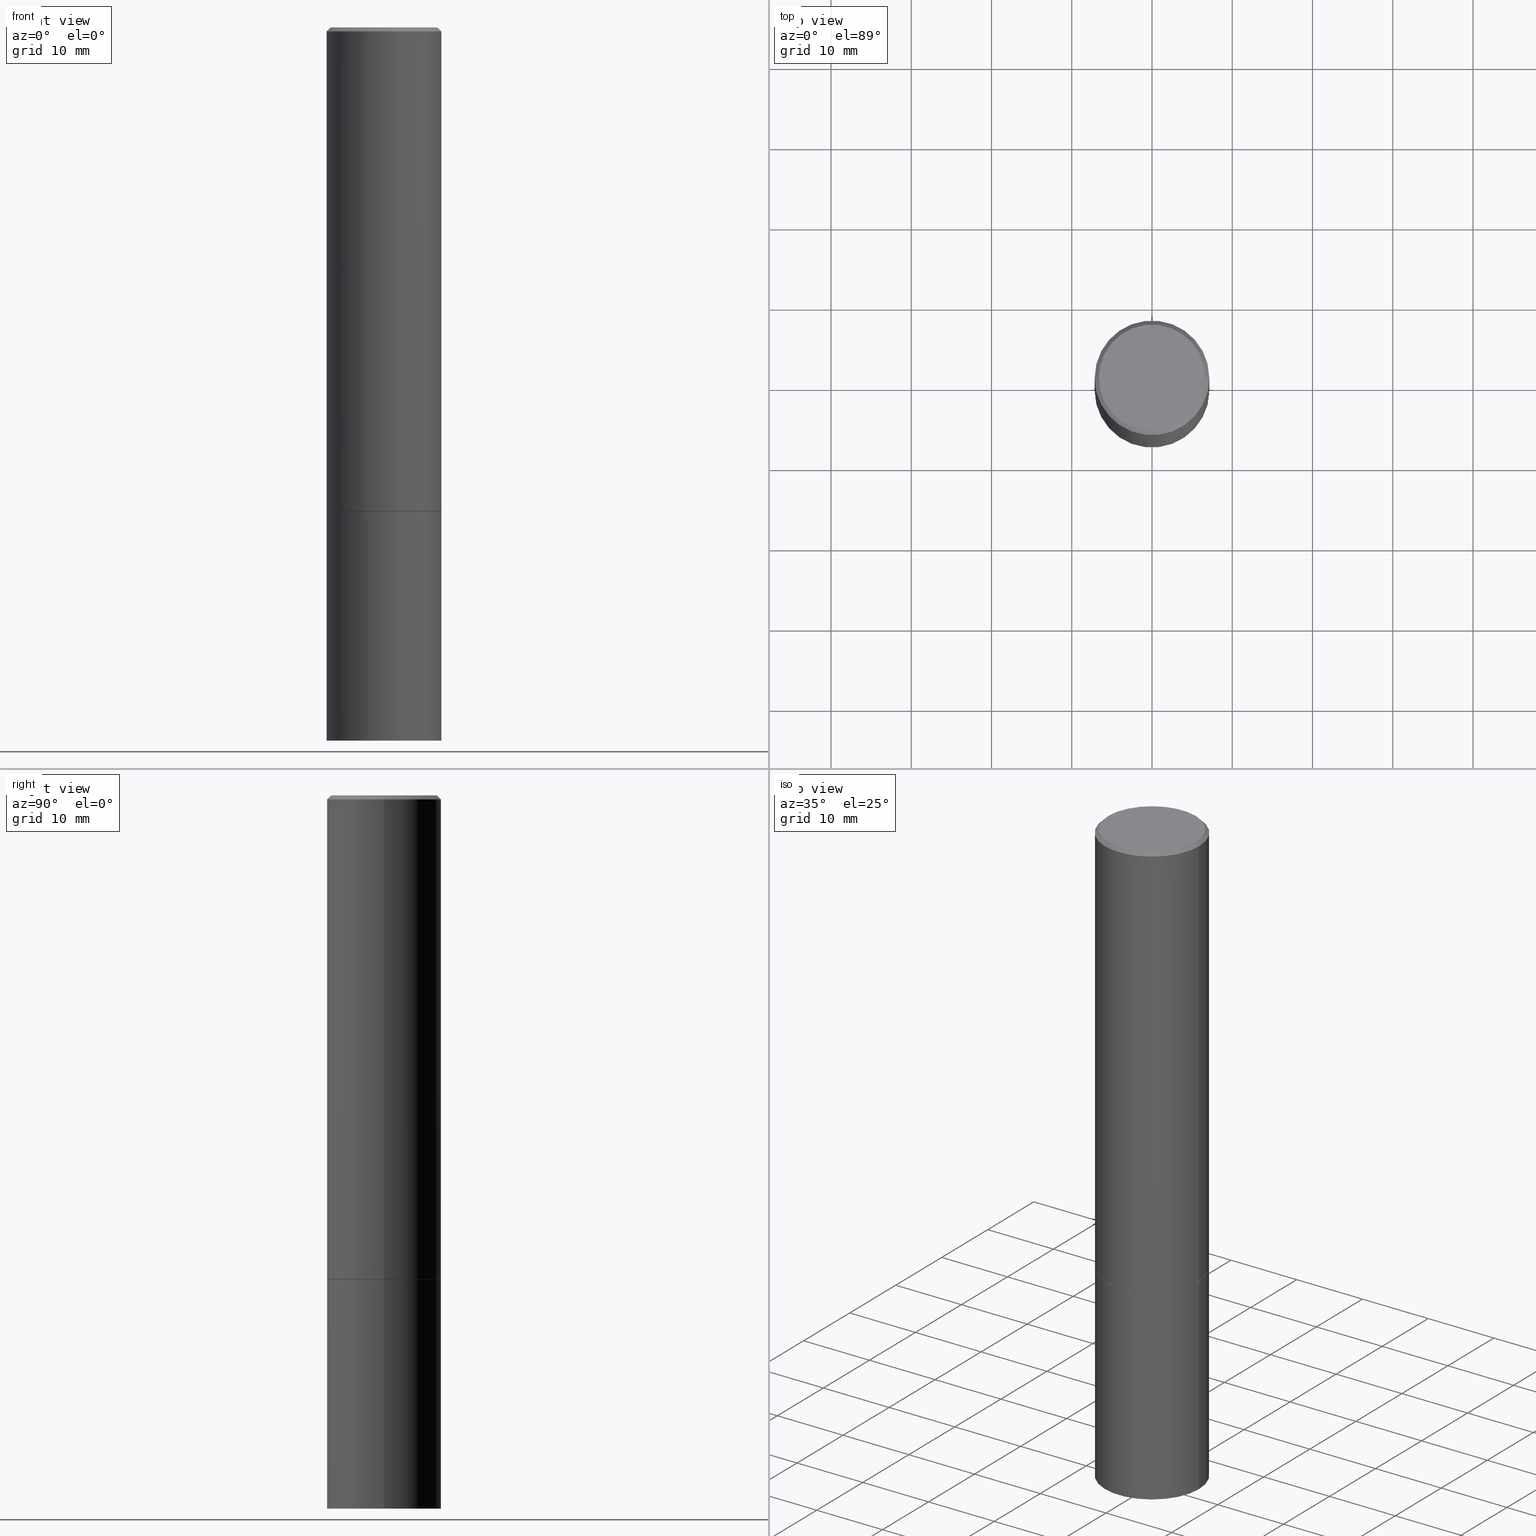
[diagram: canonical four-view strip — front | top / right | iso, engineering-drawing reading convention]
A machine part, canonical four-view strip (front | top / right | iso — engineering-drawing reading convention). The complete STEP part file that produces these views, byte-faithful:
ISO-10303-21;
HEADER;
FILE_DESCRIPTION (( 'STEP AP203' ),
    '1' );
FILE_NAME ('39365.STEP',
    '2024-02-28T00:31:30',
    ( '' ),
    ( '' ),
    'SwSTEP 2.0',
    'SolidWorks 2023',
    '' );
FILE_SCHEMA (( 'CONFIG_CONTROL_DESIGN' ));
ENDSEC;

DATA;
#1 = APPROVAL_STATUS ( 'not_yet_approved' ) ;
#2 = DIRECTION ( 'NONE',  ( 1.000000000000000000, -6.982962677686269866E-15, 0.000000000000000000 ) ) ;
#3 = CARTESIAN_POINT ( 'NONE',  ( 0.2812500000000000000, -1.963958253099262512E-15, 1.371424718192607012E-29 ) ) ;
#4 = ADVANCED_FACE ( 'NONE', ( #90 ), #143, .F. ) ;
#5 = PERSON ( 'UNSPECIFIED', 'UNSPECIFIED', 'UNSPECIFIED', ('UNSPECIFIED'), ('UNSPECIFIED'), ('UNSPECIFIED') ) ;
#6 = LINE ( 'NONE', #317, #257 ) ;
#7 = CARTESIAN_POINT ( 'NONE',  ( 0.000000000000000000, 0.000000000000000000, 0.000000000000000000 ) ) ;
#8 = LINE ( 'NONE', #120, #327 ) ;
#9 = EDGE_CURVE ( 'NONE', #361, #130, #61, .T. ) ;
#10 = CONICAL_SURFACE ( 'NONE', #131, 0.2812499999999996114, 0.7853981633974472798 ) ;
#11 =( GEOMETRIC_REPRESENTATION_CONTEXT ( 3 ) GLOBAL_UNCERTAINTY_ASSIGNED_CONTEXT ( ( #70 ) ) GLOBAL_UNIT_ASSIGNED_CONTEXT ( ( #107, #21, #242 ) ) REPRESENTATION_CONTEXT ( 'NONE', 'WORKASPACE' ) );
#12 = DIRECTION ( 'NONE',  ( -1.000000000000000000, 6.982962677686265922E-15, -4.876176775795935793E-29 ) ) ;
#13 = DIRECTION ( 'NONE',  ( -2.445468806185136597E-29, 3.491481338843145583E-15, 1.000000000000000000 ) ) ;
#14 = ADVANCED_FACE ( 'NONE', ( #168 ), #37, .T. ) ;
#15 = DIRECTION ( 'NONE',  ( -2.445468806185136877E-29, 3.491481338843145188E-15, 1.000000000000000000 ) ) ;
#16 = FACE_OUTER_BOUND ( 'NONE', #110, .T. ) ;
#17 = DIRECTION ( 'NONE',  ( -2.445468806185136597E-29, 3.491481338843145583E-15, 1.000000000000000000 ) ) ;
#18 = COORDINATED_UNIVERSAL_TIME_OFFSET ( 5, 0, .BEHIND. ) ;
#19 = ORIENTED_EDGE ( 'NONE', *, *, #141, .F. ) ;
#20 = PRODUCT_RELATED_PRODUCT_CATEGORY ( 'detail', '', ( #303 ) ) ;
#21 =( NAMED_UNIT ( * ) PLANE_ANGLE_UNIT ( ) SI_UNIT ( $, .RADIAN. ) );
#22 = CIRCLE ( 'NONE', #67, 0.2812500000000000000 ) ;
#23 = AXIS2_PLACEMENT_3D ( 'NONE', #68, #65, #96 ) ;
#24 = ORIENTED_EDGE ( 'NONE', *, *, #348, .T. ) ;
#25 = PERSON_AND_ORGANIZATION ( #5, #155 ) ;
#26 = ORIENTED_EDGE ( 'NONE', *, *, #293, .F. ) ;
#27 = DATE_AND_TIME ( #101, #339 ) ;
#28 = EDGE_LOOP ( 'NONE', ( #19, #217, #337, #358 ) ) ;
#29 = DIRECTION ( 'NONE',  ( 0.000000000000000000, 0.000000000000000000, 1.000000000000000000 ) ) ;
#30 = ORIENTED_EDGE ( 'NONE', *, *, #224, .F. ) ;
#31 = VECTOR ( 'NONE', #294, 39.37007874015748143 ) ;
#32 = AXIS2_PLACEMENT_3D ( 'NONE', #43, #129, #154 ) ;
#33 = CARTESIAN_POINT ( 'NONE',  ( 0.2812499999999996114, -1.999344688650103789E-15, -0.02000000000000006981 ) ) ;
#34 = DIRECTION ( 'NONE',  ( -2.445468806185136597E-29, 3.491481338843145583E-15, 1.000000000000000000 ) ) ;
#35 = ORIENTED_EDGE ( 'NONE', *, *, #46, .F. ) ;
#36 = AXIS2_PLACEMENT_3D ( 'NONE', #152, #13, #201 ) ;
#37 = CYLINDRICAL_SURFACE ( 'NONE', #345, 0.2812499999999998335 ) ;
#38 = CARTESIAN_POINT ( 'NONE',  ( 0.2812499999999996114, -1.999344688650103789E-15, -0.02000000000000006981 ) ) ;
#39 = DIRECTION ( 'NONE',  ( 2.438088387897960049E-29, -3.491481338843145188E-15, -1.000000000000000000 ) ) ;
#40 = SECURITY_CLASSIFICATION ( '', '', #186 ) ;
#41 = CYLINDRICAL_SURFACE ( 'NONE', #352, 0.2812500000000000000 ) ;
#42 = FACE_OUTER_BOUND ( 'NONE', #364, .T. ) ;
#43 = CARTESIAN_POINT ( 'NONE',  ( 5.807988414689698296E-29, -8.292268179752468540E-15, -2.374999999999999556 ) ) ;
#44 = CYLINDRICAL_SURFACE ( 'NONE', #286, 0.2812500000000000000 ) ;
#45 =( LENGTH_UNIT ( ) NAMED_UNIT ( * ) SI_UNIT ( $, .METRE. ) );
#46 = EDGE_CURVE ( 'NONE', #140, #130, #193, .T. ) ;
#47 = EDGE_LOOP ( 'NONE', ( #74, #82 ) ) ;
#48 = DATE_AND_TIME ( #301, #108 ) ;
#49 = ORIENTED_EDGE ( 'NONE', *, *, #204, .F. ) ;
#50 = APPLICATION_CONTEXT ( 'configuration controlled 3d designs of mechanical parts and assemblies' ) ;
#51 = CALENDAR_DATE ( 2024, 27, 2 ) ;
#52 = VECTOR ( 'NONE', #196, 39.37007874015748143 ) ;
#53 = ORIENTED_EDGE ( 'NONE', *, *, #234, .F. ) ;
#54 = EDGE_CURVE ( 'NONE', #192, #75, #6, .T. ) ;
#55 = ORIENTED_EDGE ( 'NONE', *, *, #9, .T. ) ;
#56 = CALENDAR_DATE ( 2024, 27, 2 ) ;
#57 = ORIENTED_EDGE ( 'NONE', *, *, #324, .T. ) ;
#58 = FACE_OUTER_BOUND ( 'NONE', #187, .T. ) ;
#59 = DIRECTION ( 'NONE',  ( -0.7071067811865467956, 2.468850131082249172E-15, -0.7071067811865482389 ) ) ;
#60 = EDGE_CURVE ( 'NONE', #75, #130, #85, .T. ) ;
#61 = LINE ( 'NONE', #33, #298 ) ;
#62 = SHAPE_DEFINITION_REPRESENTATION ( #127, #118 ) ;
#63 = CARTESIAN_POINT ( 'NONE',  ( 4.890937612370289799E-31, -6.982962677686315028E-17, -0.02000000000000006981 ) ) ;
#64 = CARTESIAN_POINT ( 'NONE',  ( 0.000000000000000000, 0.000000000000000000, 0.000000000000000000 ) ) ;
#65 = DIRECTION ( 'NONE',  ( -2.445468806185136597E-29, 3.491481338843145583E-15, 1.000000000000000000 ) ) ;
#66 = DIRECTION ( 'NONE',  ( 1.000000000000000000, -6.982962677686269077E-15, 0.000000000000000000 ) ) ;
#67 = AXIS2_PLACEMENT_3D ( 'NONE', #142, #247, #2 ) ;
#68 = CARTESIAN_POINT ( 'NONE',  ( 5.807988414689698296E-29, -8.292268179752468540E-15, -2.374999999999999556 ) ) ;
#69 = CARTESIAN_POINT ( 'NONE',  ( -0.2612499999999995937, 1.859213812933965593E-15, -1.288019758893701069E-29 ) ) ;
#70 = UNCERTAINTY_MEASURE_WITH_UNIT (LENGTH_MEASURE( 1.000000000000000082E-05 ), #107, 'distance_accuracy_value', 'NONE');
#71 = DIRECTION ( 'NONE',  ( 1.000000000000000000, -6.982962677686265922E-15, 4.876176775795935793E-29 ) ) ;
#72 = CC_DESIGN_PERSON_AND_ORGANIZATION_ASSIGNMENT ( #269, #304, ( #313 ) ) ;
#73 = APPLICATION_PROTOCOL_DEFINITION ( 'international standard', 'config_control_design', 1994, #50 ) ;
#74 = ORIENTED_EDGE ( 'NONE', *, *, #153, .T. ) ;
#75 = VERTEX_POINT ( 'NONE', #117 ) ;
#76 = EDGE_CURVE ( 'NONE', #109, #189, #139, .T. ) ;
#77 = PERSON_AND_ORGANIZATION_ROLE ( 'classification_officer' ) ;
#78 = ORIENTED_EDGE ( 'NONE', *, *, #267, .F. ) ;
#79 = PERSON_AND_ORGANIZATION ( #5, #155 ) ;
#80 = ORIENTED_EDGE ( 'NONE', *, *, #144, .F. ) ;
#81 = DATE_AND_TIME ( #56, #177 ) ;
#82 = ORIENTED_EDGE ( 'NONE', *, *, #272, .T. ) ;
#83 = CC_DESIGN_PERSON_AND_ORGANIZATION_ASSIGNMENT ( #25, #77, ( #40 ) ) ;
#84 = FACE_OUTER_BOUND ( 'NONE', #47, .T. ) ;
#85 = CIRCLE ( 'NONE', #176, 0.2812499999999996114 ) ;
#86 = CIRCLE ( 'NONE', #292, 0.2812500000000000555 ) ;
#87 = DIRECTION ( 'NONE',  ( -2.445468806185136877E-29, 3.491481338843145188E-15, 1.000000000000000000 ) ) ;
#88 = CALENDAR_DATE ( 2024, 27, 2 ) ;
#89 = CARTESIAN_POINT ( 'NONE',  ( -0.2812500000000000000, -8.257824988526456379E-15, -3.500000000000000000 ) ) ;
#90 = FACE_OUTER_BOUND ( 'NONE', #329, .T. ) ;
#91 = DIRECTION ( 'NONE',  ( -2.445468806185136597E-29, 3.491481338843145583E-15, 1.000000000000000000 ) ) ;
#92 = DIRECTION ( 'NONE',  ( -2.445468806185136597E-29, 3.491481338843145583E-15, 1.000000000000000000 ) ) ;
#93 = FACE_OUTER_BOUND ( 'NONE', #28, .T. ) ;
#94 = VECTOR ( 'NONE', #87, 39.37007874015748143 ) ;
#95 = CIRCLE ( 'NONE', #125, 0.2812500000000000555 ) ;
#96 = DIRECTION ( 'NONE',  ( 1.000000000000000000, -6.982962677686269077E-15, 0.000000000000000000 ) ) ;
#97 = CARTESIAN_POINT ( 'NONE',  ( 5.805542945883512693E-29, -8.288776698413625533E-15, -2.373999999999999222 ) ) ;
#98 = APPROVAL ( #135, 'UNSPECIFIED' ) ;
#99 = MECHANICAL_CONTEXT ( 'NONE', #326, 'mechanical' ) ;
#100 = APPROVAL_PERSON_ORGANIZATION ( #360, #163, #356 ) ;
#101 = CALENDAR_DATE ( 2024, 27, 2 ) ;
#102 = ORIENTED_EDGE ( 'NONE', *, *, #324, .F. ) ;
#103 = DATE_AND_TIME ( #51, #194 ) ;
#104 = ORIENTED_EDGE ( 'NONE', *, *, #54, .T. ) ;
#105 = DIRECTION ( 'NONE',  ( -2.445468806185136597E-29, 3.491481338843145583E-15, 1.000000000000000000 ) ) ;
#106 = EDGE_LOOP ( 'NONE', ( #282, #24, #241, #302 ) ) ;
#107 =( CONVERSION_BASED_UNIT ( 'INCH', #235 ) LENGTH_UNIT ( ) NAMED_UNIT ( #340 ) );
#108 = LOCAL_TIME ( 19, 31, 30.00000000000000000, #274 ) ;
#109 = VERTEX_POINT ( 'NONE', #89 ) ;
#110 = EDGE_LOOP ( 'NONE', ( #78, #30 ) ) ;
#111 = ADVANCED_FACE ( 'NONE', ( #199 ), #166, .T. ) ;
#112 = CARTESIAN_POINT ( 'NONE',  ( 0.000000000000000000, 0.000000000000000000, 0.000000000000000000 ) ) ;
#113 = DIRECTION ( 'NONE',  ( 2.438088387897960049E-29, -3.491481338843145188E-15, -1.000000000000000000 ) ) ;
#114 = CIRCLE ( 'NONE', #205, 0.2612499999999995937 ) ;
#115 = CC_DESIGN_SECURITY_CLASSIFICATION ( #40, ( #313 ) ) ;
#116 = ADVANCED_FACE ( 'NONE', ( #347 ), #147, .T. ) ;
#117 = CARTESIAN_POINT ( 'NONE',  ( -0.2812499999999996114, 1.894128626322396848E-15, -0.02000000000000006981 ) ) ;
#118 = ADVANCED_BREP_SHAPE_REPRESENTATION ( '39365', ( #138, #253, #210 ), #11 ) ;
#119 = DIRECTION ( 'NONE',  ( -1.000000000000000000, 6.982962677686265922E-15, -4.876176775795935793E-29 ) ) ;
#120 = CARTESIAN_POINT ( 'NONE',  ( -0.2802499999999999991, -6.300972162784788564E-15, -2.374999999999999556 ) ) ;
#121 = LINE ( 'NONE', #208, #328 ) ;
#122 = ADVANCED_FACE ( 'NONE', ( #58 ), #10, .T. ) ;
#123 = CARTESIAN_POINT ( 'NONE',  ( 4.890937612370289799E-31, -6.982962677686315028E-17, -0.02000000000000006981 ) ) ;
#124 = CARTESIAN_POINT ( 'NONE',  ( 5.807988414689698296E-29, -8.292268179752468540E-15, -2.374999999999999556 ) ) ;
#125 = AXIS2_PLACEMENT_3D ( 'NONE', #97, #207, #202 ) ;
#126 = CARTESIAN_POINT ( 'NONE',  ( 5.807988414689698296E-29, -8.292268179752468540E-15, -2.374999999999999556 ) ) ;
#127 = PRODUCT_DEFINITION_SHAPE ( 'NONE', 'NONE',  #316 ) ;
#128 = CC_DESIGN_PERSON_AND_ORGANIZATION_ASSIGNMENT ( #216, #212, ( #316 ) ) ;
#129 = DIRECTION ( 'NONE',  ( -2.445468806185136597E-29, 3.491481338843145583E-15, 1.000000000000000000 ) ) ;
#130 = VERTEX_POINT ( 'NONE', #38 ) ;
#131 = AXIS2_PLACEMENT_3D ( 'NONE', #288, #169, #256 ) ;
#132 = CIRCLE ( 'NONE', #357, 0.2812500000000000000 ) ;
#133 = PERSON_AND_ORGANIZATION_ROLE ( 'design_owner' ) ;
#134 = EDGE_LOOP ( 'NONE', ( #333, #55, #268, #275 ) ) ;
#135 = APPROVAL_STATUS ( 'not_yet_approved' ) ;
#136 = ORIENTED_EDGE ( 'NONE', *, *, #76, .F. ) ;
#137 = ORIENTED_EDGE ( 'NONE', *, *, #141, .T. ) ;
#138 = MANIFOLD_SOLID_BREP ( 'Body-Move/Copy2[1]', #264 ) ;
#139 = CIRCLE ( 'NONE', #181, 0.2812500000000000000 ) ;
#140 = VERTEX_POINT ( 'NONE', #148 ) ;
#141 = EDGE_CURVE ( 'NONE', #236, #226, #8, .T. ) ;
#142 = CARTESIAN_POINT ( 'NONE',  ( 8.559140821647976968E-29, -1.222018468595100934E-14, -3.500000000000000000 ) ) ;
#143 = PLANE ( 'NONE',  #244 ) ;
#144 = EDGE_CURVE ( 'NONE', #189, #109, #22, .T. ) ;
#145 = PERSON_AND_ORGANIZATION ( #5, #155 ) ;
#146 = DIRECTION ( 'NONE',  ( -2.445468806185136597E-29, 3.491481338843145583E-15, 1.000000000000000000 ) ) ;
#147 = CYLINDRICAL_SURFACE ( 'NONE', #225, 0.2812499999999998335 ) ;
#148 = CARTESIAN_POINT ( 'NONE',  ( 0.2812500000000000555, -1.025273495151288883E-14, -2.373999999999999222 ) ) ;
#149 = CARTESIAN_POINT ( 'NONE',  ( 5.807988414689698296E-29, -8.292268179752468540E-15, -2.374999999999999556 ) ) ;
#150 = CONICAL_SURFACE ( 'NONE', #227, 0.2802499999999999991, 0.7853981633972946241 ) ;
#151 = CARTESIAN_POINT ( 'NONE',  ( 0.000000000000000000, 0.000000000000000000, 0.000000000000000000 ) ) ;
#152 = CARTESIAN_POINT ( 'NONE',  ( 0.000000000000000000, 0.000000000000000000, 0.000000000000000000 ) ) ;
#153 = EDGE_CURVE ( 'NONE', #192, #361, #114, .T. ) ;
#154 = DIRECTION ( 'NONE',  ( 1.000000000000000000, -6.982962677686269077E-15, 0.000000000000000000 ) ) ;
#155 = ORGANIZATION ( 'UNSPECIFIED', 'UNSPECIFIED', '' ) ;
#156 = DIRECTION ( 'NONE',  ( 1.000000000000000000, -6.982962677686269866E-15, 0.000000000000000000 ) ) ;
#157 = ORIENTED_EDGE ( 'NONE', *, *, #296, .T. ) ;
#158 = DATE_TIME_ROLE ( 'creation_date' ) ;
#159 = ORIENTED_EDGE ( 'NONE', *, *, #310, .T. ) ;
#160 = EDGE_CURVE ( 'NONE', #189, #246, #342, .T. ) ;
#161 = DIRECTION ( 'NONE',  ( 1.000000000000000000, -6.982962677686266711E-15, 4.876176775795935793E-29 ) ) ;
#162 = EDGE_LOOP ( 'NONE', ( #26, #300, #243, #223 ) ) ;
#163 = APPROVAL ( #183, 'UNSPECIFIED' ) ;
#164 = CARTESIAN_POINT ( 'NONE',  ( -0.2812500000000000000, -8.257824988526456379E-15, -2.374999999999999556 ) ) ;
#165 = EDGE_LOOP ( 'NONE', ( #80, #136 ) ) ;
#166 = CONICAL_SURFACE ( 'NONE', #290, 0.2812499999999996114, 0.7853981633974472798 ) ;
#167 = AXIS2_PLACEMENT_3D ( 'NONE', #126, #325, #71 ) ;
#168 = FACE_OUTER_BOUND ( 'NONE', #185, .T. ) ;
#169 = DIRECTION ( 'NONE',  ( 2.445468806185136597E-29, -3.491481338843145583E-15, -1.000000000000000000 ) ) ;
#170 = EDGE_LOOP ( 'NONE', ( #366, #309, #102, #277 ) ) ;
#171 = DIRECTION ( 'NONE',  ( -1.000000000000000000, 6.982962677686268288E-15, 0.000000000000000000 ) ) ;
#172 = DIRECTION ( 'NONE',  ( 1.000000000000000000, -6.982962677686266711E-15, 4.876176775795935793E-29 ) ) ;
#173 = ADVANCED_FACE ( 'NONE', ( #84 ), #195, .F. ) ;
#174 = FACE_OUTER_BOUND ( 'NONE', #165, .T. ) ;
#175 = CARTESIAN_POINT ( 'NONE',  ( -0.2812500000000000000, -2.180901718269959487E-15, -2.373999999999999222 ) ) ;
#176 = AXIS2_PLACEMENT_3D ( 'NONE', #198, #146, #218 ) ;
#177 = LOCAL_TIME ( 19, 31, 30.00000000000000000, #188 ) ;
#178 = DIRECTION ( 'NONE',  ( -2.445468806185136877E-29, 3.491481338843145188E-15, 1.000000000000000000 ) ) ;
#179 = DIRECTION ( 'NONE',  ( 1.000000000000000000, -6.982962677686268288E-15, 0.000000000000000000 ) ) ;
#180 = FACE_OUTER_BOUND ( 'NONE', #170, .T. ) ;
#181 = AXIS2_PLACEMENT_3D ( 'NONE', #252, #343, #311 ) ;
#182 = CIRCLE ( 'NONE', #32, 0.2802499999999999991 ) ;
#183 = APPROVAL_STATUS ( 'not_yet_approved' ) ;
#184 = APPROVAL_DATE_TIME ( #27, #163 ) ;
#185 = EDGE_LOOP ( 'NONE', ( #215, #159, #49, #35 ) ) ;
#186 = SECURITY_CLASSIFICATION_LEVEL ( 'unclassified' ) ;
#187 = EDGE_LOOP ( 'NONE', ( #305, #331, #104, #335 ) ) ;
#188 = COORDINATED_UNIVERSAL_TIME_OFFSET ( 5, 0, .BEHIND. ) ;
#189 = VERTEX_POINT ( 'NONE', #351 ) ;
#190 = ADVANCED_FACE ( 'NONE', ( #350 ), #41, .T. ) ;
#191 = COORDINATED_UNIVERSAL_TIME_OFFSET ( 5, 0, .BEHIND. ) ;
#192 = VERTEX_POINT ( 'NONE', #69 ) ;
#193 = LINE ( 'NONE', #284, #94 ) ;
#194 = LOCAL_TIME ( 19, 31, 30.00000000000000000, #191 ) ;
#195 = PLANE ( 'NONE',  #249 ) ;
#196 = DIRECTION ( 'NONE',  ( -2.445468806185136877E-29, 3.491481338843145188E-15, 1.000000000000000000 ) ) ;
#197 = APPROVAL_DATE_TIME ( #250, #211 ) ;
#198 = CARTESIAN_POINT ( 'NONE',  ( 4.890937612370289799E-31, -6.982962677686315028E-17, -0.02000000000000006981 ) ) ;
#199 = FACE_OUTER_BOUND ( 'NONE', #134, .T. ) ;
#200 = CC_DESIGN_APPROVAL ( #211, ( #40 ) ) ;
#201 = DIRECTION ( 'NONE',  ( 1.000000000000000000, -6.982962677686266711E-15, 4.876176775795935793E-29 ) ) ;
#202 = DIRECTION ( 'NONE',  ( 1.000000000000000000, -6.982962677686268288E-15, 0.000000000000000000 ) ) ;
#203 = CARTESIAN_POINT ( 'NONE',  ( 0.2802499999999999991, -1.024924347017404583E-14, -2.374999999999999556 ) ) ;
#204 = EDGE_CURVE ( 'NONE', #130, #75, #271, .T. ) ;
#205 = AXIS2_PLACEMENT_3D ( 'NONE', #112, #34, #338 ) ;
#206 = CONICAL_SURFACE ( 'NONE', #23, 0.2802499999999999991, 0.7853981633972946241 ) ;
#207 = DIRECTION ( 'NONE',  ( -2.445468806185136597E-29, 3.491481338843145583E-15, 1.000000000000000000 ) ) ;
#208 = CARTESIAN_POINT ( 'NONE',  ( -0.2812500000000000000, 1.998401444325281773E-15, -1.383450494134192269E-29 ) ) ;
#209 = PERSON_AND_ORGANIZATION ( #5, #155 ) ;
#210 = AXIS2_PLACEMENT_3D ( 'NONE', #238, #29, #355 ) ;
#211 = APPROVAL ( #1, 'UNSPECIFIED' ) ;
#212 = PERSON_AND_ORGANIZATION_ROLE ( 'creator' ) ;
#213 = PERSON_AND_ORGANIZATION ( #5, #155 ) ;
#214 = ORIENTED_EDGE ( 'NONE', *, *, #267, .T. ) ;
#215 = ORIENTED_EDGE ( 'NONE', *, *, #336, .T. ) ;
#216 = PERSON_AND_ORGANIZATION ( #5, #155 ) ;
#217 = ORIENTED_EDGE ( 'NONE', *, *, #224, .T. ) ;
#218 = DIRECTION ( 'NONE',  ( 1.000000000000000000, -6.982962677686268288E-15, 0.000000000000000000 ) ) ;
#219 = ADVANCED_FACE ( 'NONE', ( #42 ), #206, .T. ) ;
#220 = LOCAL_TIME ( 19, 31, 30.00000000000000000, #279 ) ;
#221 = DIRECTION ( 'NONE',  ( 0.7071067811865467956, -7.319954787623254468E-15, -0.7071067811865482389 ) ) ;
#222 = DIRECTION ( 'NONE',  ( 2.438088387897960049E-29, -3.491481338843145188E-15, -1.000000000000000000 ) ) ;
#223 = ORIENTED_EDGE ( 'NONE', *, *, #296, .F. ) ;
#224 = EDGE_CURVE ( 'NONE', #236, #273, #182, .T. ) ;
#225 = AXIS2_PLACEMENT_3D ( 'NONE', #7, #319, #344 ) ;
#226 = VERTEX_POINT ( 'NONE', #175 ) ;
#227 = AXIS2_PLACEMENT_3D ( 'NONE', #320, #91, #66 ) ;
#228 = PLANE ( 'NONE',  #299 ) ;
#229 = LINE ( 'NONE', #322, #245 ) ;
#230 = CC_DESIGN_PERSON_AND_ORGANIZATION_ASSIGNMENT ( #213, #332, ( #313 ) ) ;
#231 = CARTESIAN_POINT ( 'NONE',  ( 5.807988414689698296E-29, -8.292268179752468540E-15, -2.374999999999999556 ) ) ;
#232 = CARTESIAN_POINT ( 'NONE',  ( 0.2812500000000000000, -1.025622643285173184E-14, -2.374999999999999556 ) ) ;
#233 = CARTESIAN_POINT ( 'NONE',  ( -0.2802499999999999991, -6.295673708436565373E-15, -2.374999999999999556 ) ) ;
#234 = EDGE_CURVE ( 'NONE', #273, #140, #261, .T. ) ;
#235 = LENGTH_MEASURE_WITH_UNIT ( LENGTH_MEASURE( 0.02539999999999999897 ), #45 );
#236 = VERTEX_POINT ( 'NONE', #233 ) ;
#237 = AXIS2_PLACEMENT_3D ( 'NONE', #149, #258, #156 ) ;
#238 = CARTESIAN_POINT ( 'NONE',  ( 0.000000000000000000, 0.000000000000000000, 0.000000000000000000 ) ) ;
#239 = ADVANCED_FACE ( 'NONE', ( #93 ), #150, .T. ) ;
#240 = APPROVAL_ROLE ( '' ) ;
#241 = ORIENTED_EDGE ( 'NONE', *, *, #46, .T. ) ;
#242 =( NAMED_UNIT ( * ) SI_UNIT ( $, .STERADIAN. ) SOLID_ANGLE_UNIT ( ) );
#243 = ORIENTED_EDGE ( 'NONE', *, *, #160, .T. ) ;
#244 = AXIS2_PLACEMENT_3D ( 'NONE', #287, #222, #119 ) ;
#245 = VECTOR ( 'NONE', #178, 39.37007874015748143 ) ;
#246 = VERTEX_POINT ( 'NONE', #232 ) ;
#247 = DIRECTION ( 'NONE',  ( -2.445468806185136597E-29, 3.491481338843145583E-15, 1.000000000000000000 ) ) ;
#248 = DIRECTION ( 'NONE',  ( -2.445468806185136597E-29, 3.491481338843145583E-15, 1.000000000000000000 ) ) ;
#249 = AXIS2_PLACEMENT_3D ( 'NONE', #314, #113, #315 ) ;
#250 = DATE_AND_TIME ( #88, #220 ) ;
#251 = CIRCLE ( 'NONE', #278, 0.2802499999999999991 ) ;
#252 = CARTESIAN_POINT ( 'NONE',  ( 8.559140821647976968E-29, -1.222018468595100934E-14, -3.500000000000000000 ) ) ;
#253 = MANIFOLD_SOLID_BREP ( 'Body-Move/Copy2[2]', #312 ) ;
#254 = ADVANCED_FACE ( 'NONE', ( #174 ), #228, .T. ) ;
#255 = DIRECTION ( 'NONE',  ( 2.445468806185136597E-29, -3.491481338843145583E-15, -1.000000000000000000 ) ) ;
#256 = DIRECTION ( 'NONE',  ( -1.000000000000000000, 6.982962677686268288E-15, 0.000000000000000000 ) ) ;
#257 = VECTOR ( 'NONE', #59, 39.37007874015748143 ) ;
#258 = DIRECTION ( 'NONE',  ( -2.445468806185136597E-29, 3.491481338843145583E-15, 1.000000000000000000 ) ) ;
#259 = CIRCLE ( 'NONE', #237, 0.2812500000000000000 ) ;
#260 = DIRECTION ( 'NONE',  ( 1.000000000000000000, -6.982962677686268288E-15, 0.000000000000000000 ) ) ;
#261 = LINE ( 'NONE', #297, #31 ) ;
#262 = DESIGN_CONTEXT ( 'detailed design', #50, 'design' ) ;
#263 = CARTESIAN_POINT ( 'NONE',  ( 1.963958253099348104E-15, 0.2812499999999877875, -3.500000000000000888 ) ) ;
#264 = CLOSED_SHELL ( 'NONE', ( #359, #254, #4, #190 ) ) ;
#265 = CIRCLE ( 'NONE', #36, 0.2612499999999995937 ) ;
#266 = PLANE ( 'NONE',  #167 ) ;
#267 = EDGE_CURVE ( 'NONE', #273, #236, #251, .T. ) ;
#268 = ORIENTED_EDGE ( 'NONE', *, *, #204, .T. ) ;
#269 = PERSON_AND_ORGANIZATION ( #5, #155 ) ;
#270 = ORIENTED_EDGE ( 'NONE', *, *, #336, .F. ) ;
#271 = CIRCLE ( 'NONE', #346, 0.2812499999999996114 ) ;
#272 = EDGE_CURVE ( 'NONE', #361, #192, #265, .T. ) ;
#273 = VERTEX_POINT ( 'NONE', #203 ) ;
#274 = COORDINATED_UNIVERSAL_TIME_OFFSET ( 5, 0, .BEHIND. ) ;
#275 = ORIENTED_EDGE ( 'NONE', *, *, #54, .F. ) ;
#276 = APPLICATION_PROTOCOL_DEFINITION ( 'international standard', 'config_control_design', 1994, #326 ) ;
#277 = ORIENTED_EDGE ( 'NONE', *, *, #160, .F. ) ;
#278 = AXIS2_PLACEMENT_3D ( 'NONE', #124, #291, #289 ) ;
#279 = COORDINATED_UNIVERSAL_TIME_OFFSET ( 5, 0, .BEHIND. ) ;
#280 = DIRECTION ( 'NONE',  ( -0.7071067811864388819, 7.493145998869961307E-15, 0.7071067811866561525 ) ) ;
#281 = CC_DESIGN_DATE_AND_TIME_ASSIGNMENT ( #48, #158, ( #316 ) ) ;
#282 = ORIENTED_EDGE ( 'NONE', *, *, #310, .F. ) ;
#283 = DATE_TIME_ROLE ( 'classification_date' ) ;
#284 = CARTESIAN_POINT ( 'NONE',  ( 0.2812499999999998335, -1.963958253099261329E-15, 1.371424718192606171E-29 ) ) ;
#285 = CC_DESIGN_PERSON_AND_ORGANIZATION_ASSIGNMENT ( #209, #133, ( #303 ) ) ;
#286 = AXIS2_PLACEMENT_3D ( 'NONE', #330, #105, #161 ) ;
#287 = CARTESIAN_POINT ( 'NONE',  ( 1.963958253099320494E-15, 0.2812499999999917288, -2.375000000000000444 ) ) ;
#288 = CARTESIAN_POINT ( 'NONE',  ( 4.890937612370289799E-31, -6.982962677686315028E-17, -0.02000000000000006981 ) ) ;
#289 = DIRECTION ( 'NONE',  ( 1.000000000000000000, -6.982962677686269077E-15, 0.000000000000000000 ) ) ;
#290 = AXIS2_PLACEMENT_3D ( 'NONE', #63, #255, #171 ) ;
#291 = DIRECTION ( 'NONE',  ( -2.445468806185136597E-29, 3.491481338843145583E-15, 1.000000000000000000 ) ) ;
#292 = AXIS2_PLACEMENT_3D ( 'NONE', #321, #323, #179 ) ;
#293 = EDGE_CURVE ( 'NONE', #109, #363, #121, .T. ) ;
#294 = DIRECTION ( 'NONE',  ( 0.7071067811864388819, -2.468850131081119129E-15, 0.7071067811866561525 ) ) ;
#295 = DIRECTION ( 'NONE',  ( 1.000000000000000000, -6.982962677686266711E-15, 4.876176775795935793E-29 ) ) ;
#296 = EDGE_CURVE ( 'NONE', #363, #246, #259, .T. ) ;
#297 = CARTESIAN_POINT ( 'NONE',  ( 0.2802499999999999991, -1.024924347017404583E-14, -2.374999999999999556 ) ) ;
#298 = VECTOR ( 'NONE', #221, 39.37007874015748143 ) ;
#299 = AXIS2_PLACEMENT_3D ( 'NONE', #263, #39, #12 ) ;
#300 = ORIENTED_EDGE ( 'NONE', *, *, #76, .T. ) ;
#301 = CALENDAR_DATE ( 2024, 27, 2 ) ;
#302 = ORIENTED_EDGE ( 'NONE', *, *, #60, .F. ) ;
#303 = PRODUCT ( '39365', '39365', '', ( #99 ) ) ;
#304 = PERSON_AND_ORGANIZATION_ROLE ( 'design_supplier' ) ;
#305 = ORIENTED_EDGE ( 'NONE', *, *, #9, .F. ) ;
#306 = CC_DESIGN_DATE_AND_TIME_ASSIGNMENT ( #81, #283, ( #40 ) ) ;
#307 = APPROVAL_PERSON_ORGANIZATION ( #145, #211, #341 ) ;
#308 = APPROVAL_DATE_TIME ( #103, #98 ) ;
#309 = ORIENTED_EDGE ( 'NONE', *, *, #293, .T. ) ;
#310 = EDGE_CURVE ( 'NONE', #226, #75, #229, .T. ) ;
#311 = DIRECTION ( 'NONE',  ( 1.000000000000000000, -6.982962677686269866E-15, 0.000000000000000000 ) ) ;
#312 = CLOSED_SHELL ( 'NONE', ( #219, #14, #111, #122, #116, #239, #353, #173 ) ) ;
#313 = PRODUCT_DEFINITION_FORMATION_WITH_SPECIFIED_SOURCE ( 'ANY', '', #303, .NOT_KNOWN. ) ;
#314 = CARTESIAN_POINT ( 'NONE',  ( 1.824298999545534338E-15, 0.2612499999999995937, -9.121494997727705218E-16 ) ) ;
#315 = DIRECTION ( 'NONE',  ( -1.000000000000000000, 6.982962677686265922E-15, -4.876176775795935793E-29 ) ) ;
#316 = PRODUCT_DEFINITION ( 'UNKNOWN', '', #313, #262 ) ;
#317 = CARTESIAN_POINT ( 'NONE',  ( -0.2812499999999996114, 1.894128626322396848E-15, -0.02000000000000006981 ) ) ;
#318 = CC_DESIGN_APPROVAL ( #98, ( #313 ) ) ;
#319 = DIRECTION ( 'NONE',  ( -2.445468806185136597E-29, 3.491481338843145583E-15, 1.000000000000000000 ) ) ;
#320 = CARTESIAN_POINT ( 'NONE',  ( 5.807988414689698296E-29, -8.292268179752468540E-15, -2.374999999999999556 ) ) ;
#321 = CARTESIAN_POINT ( 'NONE',  ( 5.805542945883512693E-29, -8.288776698413625533E-15, -2.373999999999999222 ) ) ;
#322 = CARTESIAN_POINT ( 'NONE',  ( -0.2812499999999998335, 1.998401444325280589E-15, -1.383450494134191428E-29 ) ) ;
#323 = DIRECTION ( 'NONE',  ( -2.445468806185136597E-29, 3.491481338843145583E-15, 1.000000000000000000 ) ) ;
#324 = EDGE_CURVE ( 'NONE', #246, #363, #132, .T. ) ;
#325 = DIRECTION ( 'NONE',  ( -2.438088387897960049E-29, 3.491481338843145188E-15, 1.000000000000000000 ) ) ;
#326 = APPLICATION_CONTEXT ( 'configuration controlled 3d designs of mechanical parts and assemblies' ) ;
#327 = VECTOR ( 'NONE', #280, 39.37007874015748143 ) ;
#328 = VECTOR ( 'NONE', #15, 39.37007874015748143 ) ;
#329 = EDGE_LOOP ( 'NONE', ( #57, #157 ) ) ;
#330 = CARTESIAN_POINT ( 'NONE',  ( 0.000000000000000000, 0.000000000000000000, 0.000000000000000000 ) ) ;
#331 = ORIENTED_EDGE ( 'NONE', *, *, #153, .F. ) ;
#332 = PERSON_AND_ORGANIZATION_ROLE ( 'creator' ) ;
#333 = ORIENTED_EDGE ( 'NONE', *, *, #272, .F. ) ;
#334 = CC_DESIGN_APPROVAL ( #163, ( #316 ) ) ;
#335 = ORIENTED_EDGE ( 'NONE', *, *, #60, .T. ) ;
#336 = EDGE_CURVE ( 'NONE', #140, #226, #95, .T. ) ;
#337 = ORIENTED_EDGE ( 'NONE', *, *, #234, .T. ) ;
#338 = DIRECTION ( 'NONE',  ( 1.000000000000000000, -6.982962677686266711E-15, 4.876176775795935793E-29 ) ) ;
#339 = LOCAL_TIME ( 19, 31, 30.00000000000000000, #18 ) ;
#340 = DIMENSIONAL_EXPONENTS ( 1.000000000000000000, 0.000000000000000000, 0.000000000000000000, 0.000000000000000000, 0.000000000000000000, 0.000000000000000000, 0.000000000000000000 ) ;
#341 = APPROVAL_ROLE ( '' ) ;
#342 = LINE ( 'NONE', #3, #52 ) ;
#343 = DIRECTION ( 'NONE',  ( -2.445468806185136597E-29, 3.491481338843145583E-15, 1.000000000000000000 ) ) ;
#344 = DIRECTION ( 'NONE',  ( 1.000000000000000000, -6.982962677686266711E-15, 4.876176775795935793E-29 ) ) ;
#345 = AXIS2_PLACEMENT_3D ( 'NONE', #64, #248, #172 ) ;
#346 = AXIS2_PLACEMENT_3D ( 'NONE', #123, #17, #260 ) ;
#347 = FACE_OUTER_BOUND ( 'NONE', #106, .T. ) ;
#348 = EDGE_CURVE ( 'NONE', #226, #140, #86, .T. ) ;
#349 = DIRECTION ( 'NONE',  ( -2.445468806185136597E-29, 3.491481338843145583E-15, 1.000000000000000000 ) ) ;
#350 = FACE_OUTER_BOUND ( 'NONE', #162, .T. ) ;
#351 = CARTESIAN_POINT ( 'NONE',  ( 0.2812500000000000000, -1.418414293905027264E-14, -3.500000000000000000 ) ) ;
#352 = AXIS2_PLACEMENT_3D ( 'NONE', #151, #349, #295 ) ;
#353 = ADVANCED_FACE ( 'NONE', ( #16 ), #266, .F. ) ;
#354 = DIRECTION ( 'NONE',  ( 1.000000000000000000, -6.982962677686269866E-15, 0.000000000000000000 ) ) ;
#355 = DIRECTION ( 'NONE',  ( 1.000000000000000000, 0.000000000000000000, 0.000000000000000000 ) ) ;
#356 = APPROVAL_ROLE ( '' ) ;
#357 = AXIS2_PLACEMENT_3D ( 'NONE', #231, #92, #354 ) ;
#358 = ORIENTED_EDGE ( 'NONE', *, *, #348, .F. ) ;
#359 = ADVANCED_FACE ( 'NONE', ( #180 ), #44, .T. ) ;
#360 = PERSON_AND_ORGANIZATION ( #5, #155 ) ;
#361 = VERTEX_POINT ( 'NONE', #362 ) ;
#362 = CARTESIAN_POINT ( 'NONE',  ( 0.2612499999999995937, -1.895824895283956809E-15, 1.300802449975685690E-29 ) ) ;
#363 = VERTEX_POINT ( 'NONE', #164 ) ;
#364 = EDGE_LOOP ( 'NONE', ( #214, #137, #270, #53 ) ) ;
#365 = APPROVAL_PERSON_ORGANIZATION ( #79, #98, #240 ) ;
#366 = ORIENTED_EDGE ( 'NONE', *, *, #144, .T. ) ;
ENDSEC;
END-ISO-10303-21;
